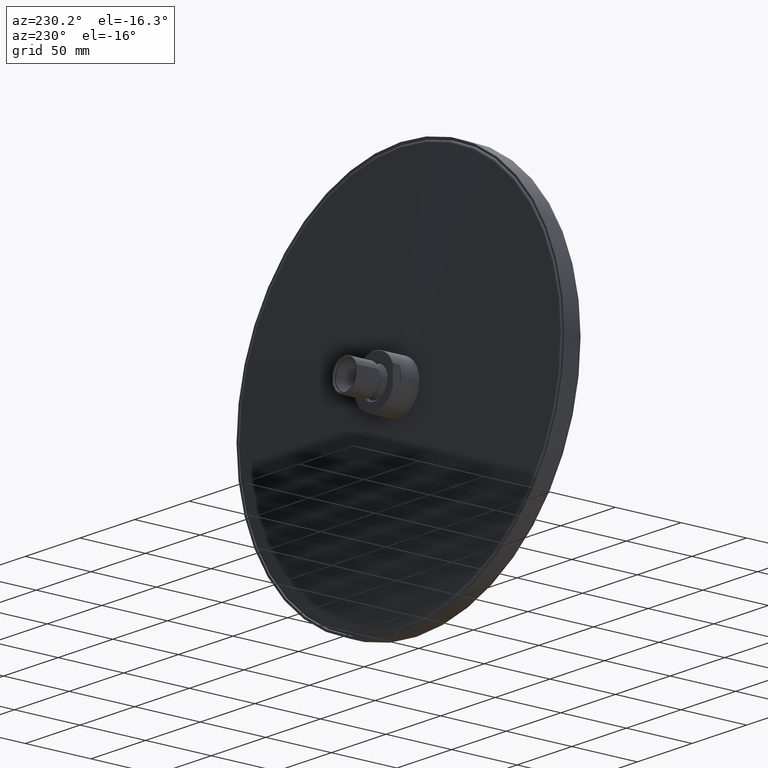
[diagram: clean part render]
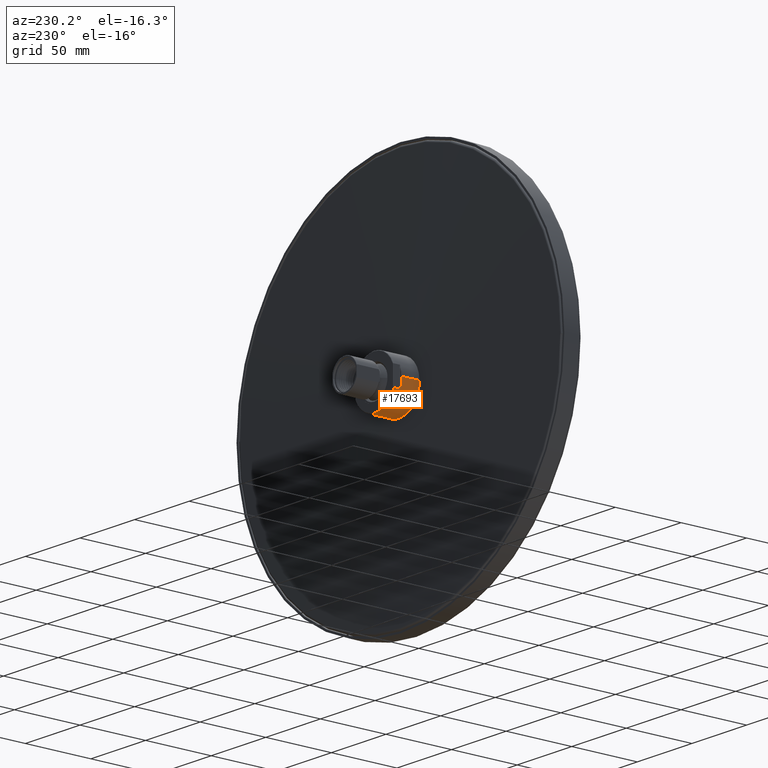
[diagram: same view with one face highlighted and labeled with its STEP entity id]
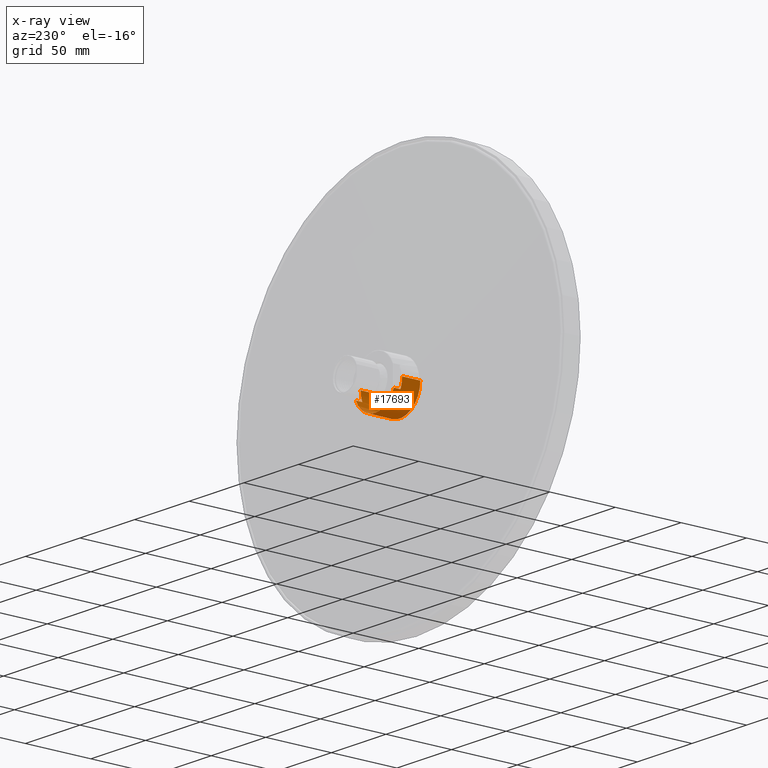
[diagram: x-ray of the same camera — body ghosted, the highlighted face saturated]
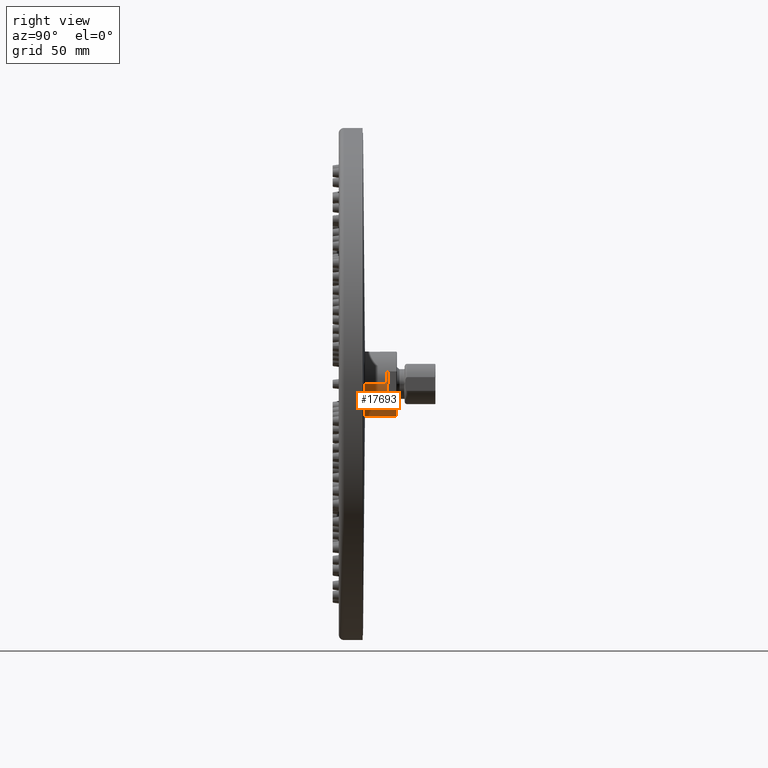
[diagram: same view with one face highlighted and labeled with its STEP entity id]
A machine part, auxiliary view. The second image highlights one B-rep face of the part: STEP entity #17693.
The next image is the same camera in x-ray: the body ghosted, the highlighted face saturated — about 0% of this face is hidden behind the body in this view.
A second angle (right view) of the same face is appended — the face is thin or edge-on in the first view.
In plain terms, the highlighted cylindrical surface (edge-blend (fillet) strip) has radius 19 mm, axis along (0, -1, 0).
Its self-contained STEP definition (entity closure, byte-faithful):
#15497=CARTESIAN_POINT('',(0.E0,-1.937987390906E1,0.E0));
#15498=DIRECTION('',(0.E0,1.E0,0.E0));
#15499=DIRECTION('',(1.E0,0.E0,0.E0));
#15500=AXIS2_PLACEMENT_3D('',#15497,#15498,#15499);
#15512=DIRECTION('',(0.E0,-1.E0,0.E0));
#15513=VECTOR('',#15512,1.387987390906E1);
#15514=CARTESIAN_POINT('',(1.9E1,-5.5E0,0.E0));
#15515=LINE('',#15514,#15513);
#15524=DIRECTION('',(6.737819297663E-7,9.999999999985E-1,1.569674101541E-6));
#15525=VECTOR('',#15524,5.000000000289E0);
#15526=CARTESIAN_POINT('',(1.745945945947E1,-5.5E0,-7.494482996387E0));
#15527=LINE('',#15526,#15525);
#15528=DIRECTION('',(3.951866901273E-7,-9.999999999995E-1,-9.206449220751E-7));
#15529=VECTOR('',#15528,5.000000000003E0);
#15530=CARTESIAN_POINT('',(-1.745946143540E1,-5.E-1,-7.494478393176E0));
#15531=LINE('',#15530,#15529);
#15532=DIRECTION('',(0.E0,-1.E0,0.E0));
#15533=VECTOR('',#15532,1.387987390906E1);
#15534=CARTESIAN_POINT('',(-1.9E1,-5.5E0,0.E0));
#15535=LINE('',#15534,#15533);
#15536=CARTESIAN_POINT('',(0.E0,-5.5E0,0.E0));
#15537=DIRECTION('',(0.E0,-1.E0,0.E0));
#15538=DIRECTION('',(9.189189189210E-1,0.E0,-3.944464734904E-1));
#15539=AXIS2_PLACEMENT_3D('',#15536,#15537,#15538);
#15541=CARTESIAN_POINT('',(0.E0,-5.5E0,0.E0));
#15542=DIRECTION('',(0.E0,-1.E0,0.E0));
#15543=DIRECTION('',(9.999664876764E-1,0.E0,-8.186789615397E-3));
#15544=AXIS2_PLACEMENT_3D('',#15541,#15542,#15543);
#15738=CARTESIAN_POINT('',(0.E0,-5.5E0,0.E0));
#15739=DIRECTION('',(0.E0,-1.E0,0.E0));
#15740=DIRECTION('',(-1.E0,0.E0,0.E0));
#15741=AXIS2_PLACEMENT_3D('',#15738,#15739,#15740);
#15792=CARTESIAN_POINT('',(0.E0,-5.E-1,0.E0));
#15793=DIRECTION('',(0.E0,-1.E0,0.E0));
#15794=DIRECTION('',(-9.189189189198E-1,0.E0,-3.944464734932E-1));
#15795=AXIS2_PLACEMENT_3D('',#15792,#15793,#15794);
#15836=CARTESIAN_POINT('',(1.745945945947E1,-5.5E0,-7.494482996387E0));
#17529=CARTESIAN_POINT('',(-1.745945945948E1,-5.E-1,-7.494482996371E0));
#17530=CARTESIAN_POINT('',(1.745945945950E1,-5.E-1,-7.494482996317E0));
#17531=VERTEX_POINT('',#17529);
#17532=VERTEX_POINT('',#17530);
#17537=VERTEX_POINT('',#15836);
#17540=CARTESIAN_POINT('',(1.899936326585E1,-5.5E0,-1.555490026925E-1));
#17541=VERTEX_POINT('',#17540);
#17542=CARTESIAN_POINT('',(1.9E1,-5.5E0,0.E0));
#17543=VERTEX_POINT('',#17542);
#17552=CARTESIAN_POINT('',(1.9E1,-1.937987390906E1,0.E0));
#17553=VERTEX_POINT('',#17552);
#17554=CARTESIAN_POINT('',(-1.745945945946E1,-5.5E0,-7.494482996401E0));
#17555=VERTEX_POINT('',#17554);
#17556=CARTESIAN_POINT('',(-1.9E1,-5.5E0,0.E0));
#17557=VERTEX_POINT('',#17556);
#17558=CARTESIAN_POINT('',(-1.9E1,-1.937987390906E1,0.E0));
#17559=VERTEX_POINT('',#17558);
#17671=CARTESIAN_POINT('',(0.E0,9.85E-1,0.E0));
#17672=DIRECTION('',(0.E0,-1.E0,0.E0));
#17673=DIRECTION('',(-1.E0,0.E0,0.E0));
#17674=AXIS2_PLACEMENT_3D('',#17671,#17672,#17673);
#17675=CYLINDRICAL_SURFACE('',#17674,1.9E1);
#17676=ORIENTED_EDGE('',*,*,#17651,.F.);
#17678=ORIENTED_EDGE('',*,*,#17677,.F.);
#17680=ORIENTED_EDGE('',*,*,#17679,.F.);
#17682=ORIENTED_EDGE('',*,*,#17681,.T.);
#17684=ORIENTED_EDGE('',*,*,#17683,.F.);
#17686=ORIENTED_EDGE('',*,*,#17685,.T.);
#17688=ORIENTED_EDGE('',*,*,#17687,.F.);
#17689=ORIENTED_EDGE('',*,*,#17654,.T.);
#17690=ORIENTED_EDGE('',*,*,#17637,.F.);
#17691=EDGE_LOOP('',(#17676,#17678,#17680,#17682,#17684,#17686,#17688,#17689,
#17690));
#17692=FACE_OUTER_BOUND('',#17691,.F.);
#17693=ADVANCED_FACE('',(#17692),#17675,.T.);
#15501=CIRCLE('',#15500,1.9E1);
#15540=CIRCLE('',#15539,1.9E1);
#15545=CIRCLE('',#15544,1.9E1);
#15742=CIRCLE('',#15741,1.9E1);
#15796=CIRCLE('',#15795,1.9E1);
#17637=EDGE_CURVE('',#17553,#17559,#15501,.T.);
#17651=EDGE_CURVE('',#17543,#17553,#15515,.T.);
#17654=EDGE_CURVE('',#17557,#17559,#15535,.T.);
#17677=EDGE_CURVE('',#17541,#17543,#15545,.T.);
#17679=EDGE_CURVE('',#17537,#17541,#15540,.T.);
#17681=EDGE_CURVE('',#17537,#17532,#15527,.T.);
#17683=EDGE_CURVE('',#17531,#17532,#15796,.T.);
#17685=EDGE_CURVE('',#17531,#17555,#15531,.T.);
#17687=EDGE_CURVE('',#17557,#17555,#15742,.T.);